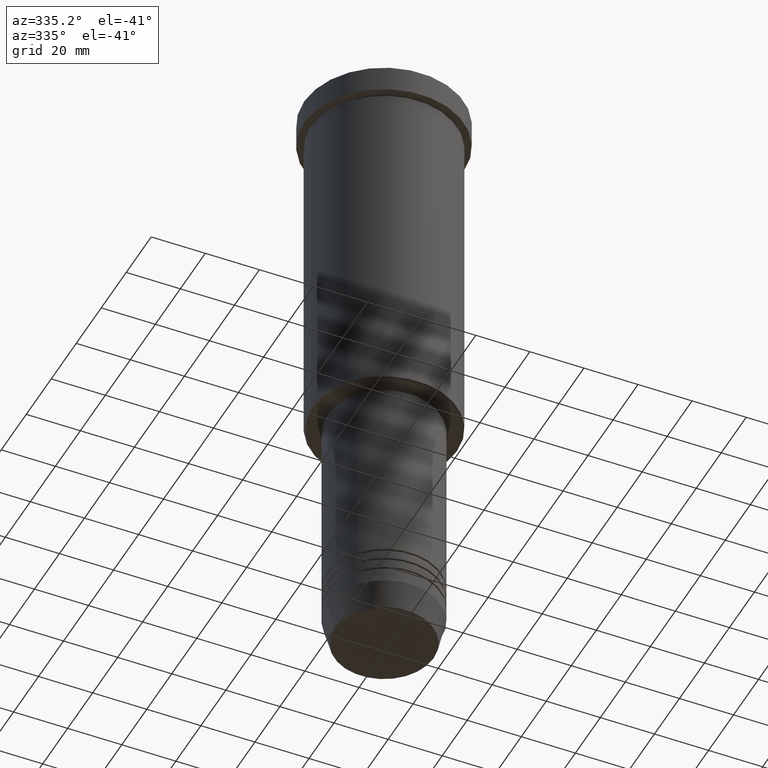
[diagram: clean part render]
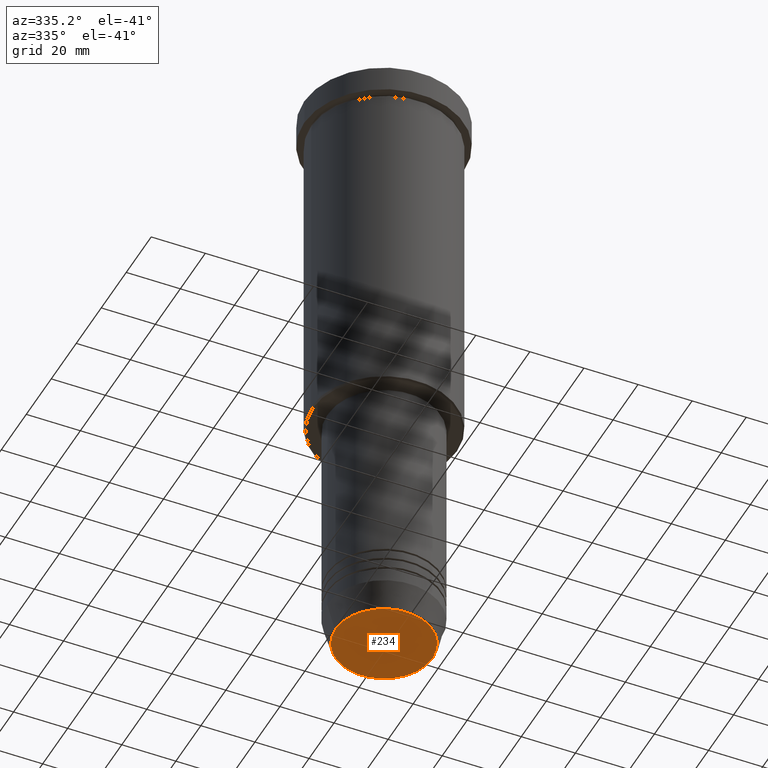
[diagram: same view with one face highlighted and labeled with its STEP entity id]
A machine part, auxiliary view. The second image highlights one B-rep face of the part: STEP entity #234.
In plain terms, the highlighted planar face has unit normal (0, -0, 1).
Its self-contained STEP definition (entity closure, byte-faithful):
#20 = CIRCLE ( 'NONE', #1015, 17.93684458169929030 ) ;
#77 = FACE_OUTER_BOUND ( 'NONE', #181, .T. ) ;
#181 = EDGE_LOOP ( 'NONE', ( #1137, #265 ) ) ;
#234 = ADVANCED_FACE ( 'NONE', ( #77 ), #505, .F. ) ;
#240 = CIRCLE ( 'NONE', #473, 17.93684458169929030 ) ;
#251 = DIRECTION ( 'NONE',  ( 0.000000000000000000, 0.000000000000000000, -1.000000000000000000 ) ) ;
#265 = ORIENTED_EDGE ( 'NONE', *, *, #746, .T. ) ;
#272 = DIRECTION ( 'NONE',  ( 1.000000000000000000, 0.000000000000000000, 0.000000000000000000 ) ) ;
#326 = CARTESIAN_POINT ( 'NONE',  ( 0.000000000000000000, 0.000000000000000000, -231.0000000000000284 ) ) ;
#341 = VERTEX_POINT ( 'NONE', #1005 ) ;
#436 = DIRECTION ( 'NONE',  ( 1.000000000000000000, 0.000000000000000000, 0.000000000000000000 ) ) ;
#447 = AXIS2_PLACEMENT_3D ( 'NONE', #326, #876, #436 ) ;
#473 = AXIS2_PLACEMENT_3D ( 'NONE', #826, #638, #272 ) ;
#495 = VERTEX_POINT ( 'NONE', #676 ) ;
#505 = PLANE ( 'NONE',  #447 ) ;
#556 = DIRECTION ( 'NONE',  ( 1.000000000000000000, 0.000000000000000000, 0.000000000000000000 ) ) ;
#638 = DIRECTION ( 'NONE',  ( 0.000000000000000000, 0.000000000000000000, -1.000000000000000000 ) ) ;
#676 = CARTESIAN_POINT ( 'NONE',  ( -17.93684458169929030, 2.226202879662624346E-15, -231.0000000000000284 ) ) ;
#746 = EDGE_CURVE ( 'NONE', #495, #341, #240, .T. ) ;
#826 = CARTESIAN_POINT ( 'NONE',  ( 0.000000000000000000, 0.000000000000000000, -231.0000000000000284 ) ) ;
#876 = DIRECTION ( 'NONE',  ( 0.000000000000000000, -0.000000000000000000, 1.000000000000000000 ) ) ;
#917 = CARTESIAN_POINT ( 'NONE',  ( 0.000000000000000000, 0.000000000000000000, -231.0000000000000284 ) ) ;
#964 = EDGE_CURVE ( 'NONE', #341, #495, #20, .T. ) ;
#1005 = CARTESIAN_POINT ( 'NONE',  ( 17.93684458169929030, 0.000000000000000000, -231.0000000000000284 ) ) ;
#1015 = AXIS2_PLACEMENT_3D ( 'NONE', #917, #251, #556 ) ;
#1137 = ORIENTED_EDGE ( 'NONE', *, *, #964, .T. ) ;